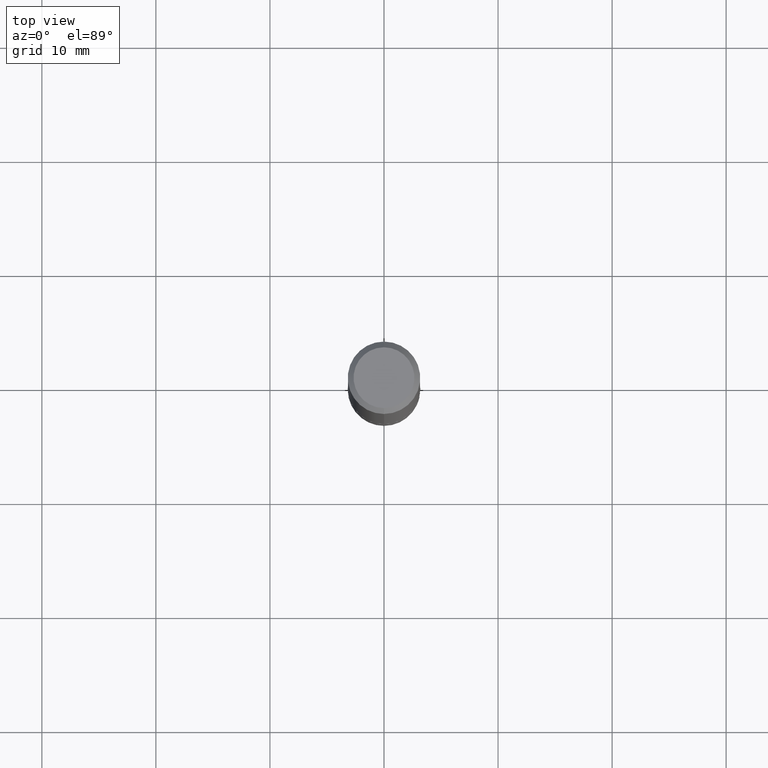
[diagram: clean part render]
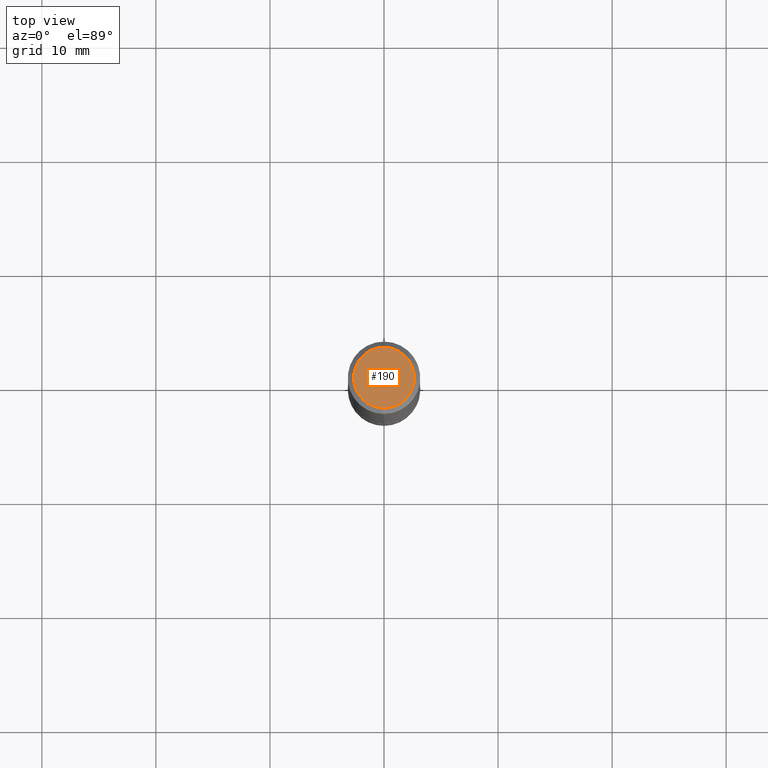
[diagram: same view with one face highlighted and labeled with its STEP entity id]
A machine part, top view. The second image highlights one B-rep face of the part: STEP entity #190.
In plain terms, the highlighted planar face has unit normal (0, -0, -1).
Its self-contained STEP definition (entity closure, byte-faithful):
#24 = DIRECTION ( 'NONE',  ( 2.447126896024399238E-29, -3.489106859820708269E-15, -1.000000000000000000 ) ) ;
#27 = DIRECTION ( 'NONE',  ( 6.982962677686265922E-15, 1.000000000000000000, -3.489106859820708269E-15 ) ) ;
#41 = CARTESIAN_POINT ( 'NONE',  ( 8.030407079339233933E-16, 0.1050000000000007178, -1.079447126425301600E-15 ) ) ;
#45 = AXIS2_PLACEMENT_3D ( 'NONE', #66, #172, #199 ) ;
#58 = EDGE_CURVE ( 'NONE', #235, #322, #280, .T. ) ;
#59 = AXIS2_PLACEMENT_3D ( 'NONE', #357, #352, #166 ) ;
#66 = CARTESIAN_POINT ( 'NONE',  ( 1.745023935735698202E-44, -2.488050372303230009E-30, -7.130909061441245634E-16 ) ) ;
#166 = DIRECTION ( 'NONE',  ( -6.982962677686266711E-15, -1.000000000000000000, 3.489106859820709058E-15 ) ) ;
#172 = DIRECTION ( 'NONE',  ( -2.447126896024399518E-29, 3.489106859820708269E-15, 1.000000000000000000 ) ) ;
#190 = ADVANCED_FACE ( 'NONE', ( #248 ), #339, .F. ) ;
#199 = DIRECTION ( 'NONE',  ( -6.982962677686266711E-15, -1.000000000000000000, 3.489106859820709058E-15 ) ) ;
#235 = VERTEX_POINT ( 'NONE', #347 ) ;
#248 = FACE_OUTER_BOUND ( 'NONE', #386, .T. ) ;
#267 = CIRCLE ( 'NONE', #45, 0.1050000000000007178 ) ;
#280 = CIRCLE ( 'NONE', #59, 0.1050000000000007178 ) ;
#295 = ORIENTED_EDGE ( 'NONE', *, *, #345, .T. ) ;
#322 = VERTEX_POINT ( 'NONE', #41 ) ;
#339 = PLANE ( 'NONE',  #355 ) ;
#342 = CARTESIAN_POINT ( 'NONE',  ( 7.332110811570630533E-16, 0.1050000000000007178, -7.229016733532391211E-16 ) ) ;
#345 = EDGE_CURVE ( 'NONE', #322, #235, #267, .T. ) ;
#347 = CARTESIAN_POINT ( 'NONE',  ( -7.889572697437284805E-16, -0.1050000000000007178, -3.467346858629476748E-16 ) ) ;
#352 = DIRECTION ( 'NONE',  ( -2.447126896024399518E-29, 3.489106859820708269E-15, 1.000000000000000000 ) ) ;
#355 = AXIS2_PLACEMENT_3D ( 'NONE', #342, #24, #27 ) ;
#357 = CARTESIAN_POINT ( 'NONE',  ( 1.745023935735698202E-44, -2.488050372303230009E-30, -7.130909061441245634E-16 ) ) ;
#381 = ORIENTED_EDGE ( 'NONE', *, *, #58, .T. ) ;
#386 = EDGE_LOOP ( 'NONE', ( #295, #381 ) ) ;